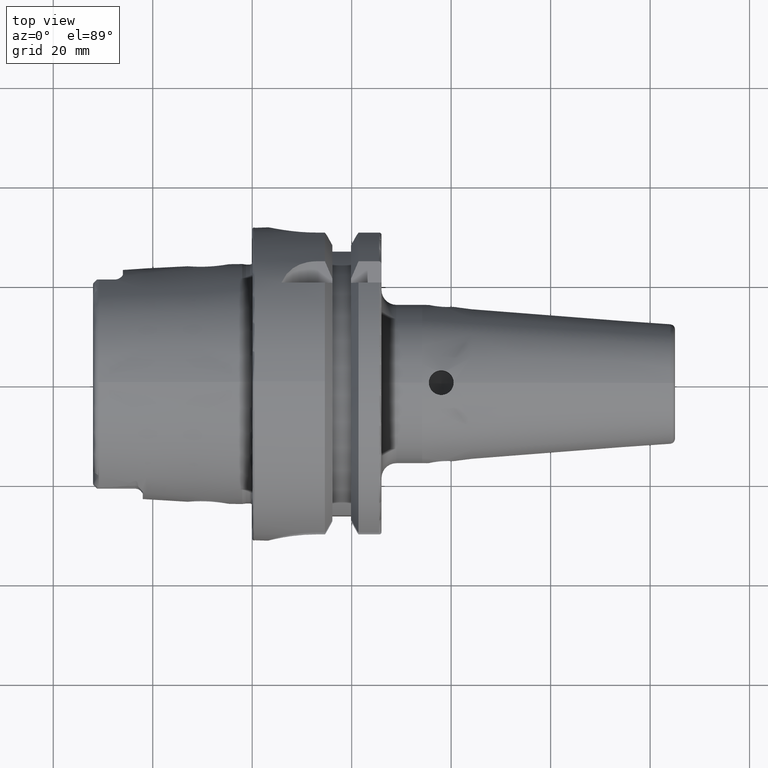
[diagram: clean part render]
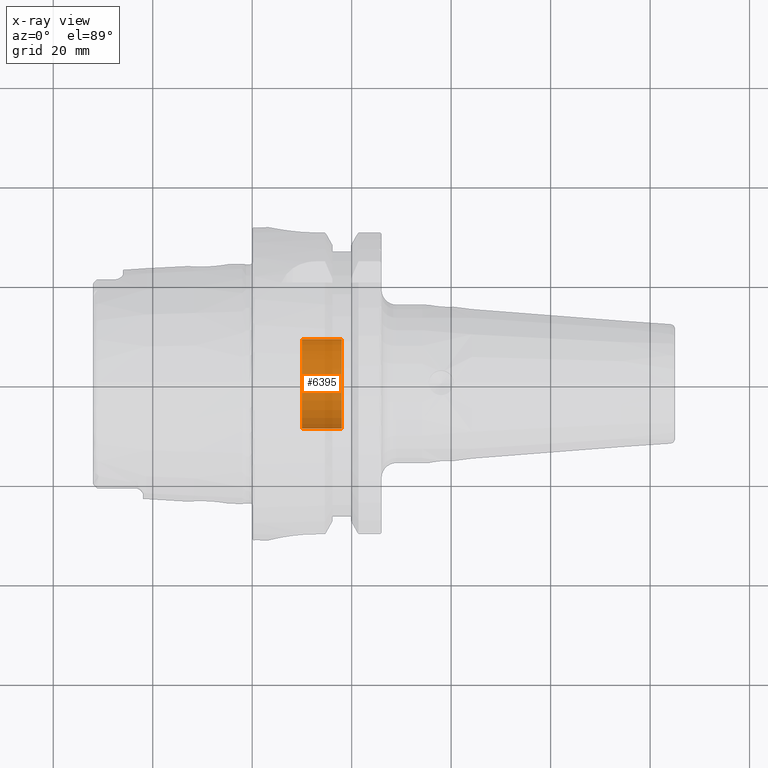
[diagram: x-ray — body ghosted, one internal face saturated and labeled with its STEP entity id]
A machine part, top view, then the same camera in x-ray: the body is ghosted and one INTERNAL B-rep face — a face not visible from any outside direction — is saturated and labeled: STEP entity #6395.
In plain terms, the highlighted cylindrical surface (partial cylindrical patch) has radius 9 mm, axis along (-1, 0, 0).
Its self-contained STEP definition (entity closure, byte-faithful):
#6330=CARTESIAN_POINT('',(1.E1,0.E0,0.E0));
#6331=DIRECTION('',(1.E0,0.E0,0.E0));
#6332=DIRECTION('',(0.E0,-1.E0,0.E0));
#6333=AXIS2_PLACEMENT_3D('',#6330,#6331,#6332);
#6340=DIRECTION('',(1.E0,0.E0,0.E0));
#6341=VECTOR('',#6340,8.E0);
#6342=CARTESIAN_POINT('',(1.E1,-9.E0,0.E0));
#6343=LINE('',#6342,#6341);
#6344=DIRECTION('',(1.E0,0.E0,0.E0));
#6345=VECTOR('',#6344,8.E0);
#6346=CARTESIAN_POINT('',(1.E1,9.E0,0.E0));
#6347=LINE('',#6346,#6345);
#6353=CARTESIAN_POINT('',(1.8E1,0.E0,0.E0));
#6354=DIRECTION('',(-1.E0,0.E0,0.E0));
#6355=DIRECTION('',(0.E0,1.E0,0.E0));
#6356=AXIS2_PLACEMENT_3D('',#6353,#6354,#6355);
#6368=CARTESIAN_POINT('',(1.8E1,9.E0,0.E0));
#6369=CARTESIAN_POINT('',(1.8E1,-9.E0,0.E0));
#6370=VERTEX_POINT('',#6368);
#6371=VERTEX_POINT('',#6369);
#6372=CARTESIAN_POINT('',(1.E1,9.E0,0.E0));
#6373=CARTESIAN_POINT('',(1.E1,-9.E0,0.E0));
#6374=VERTEX_POINT('',#6372);
#6375=VERTEX_POINT('',#6373);
#6380=CARTESIAN_POINT('',(2.376268102482E1,0.E0,0.E0));
#6381=DIRECTION('',(-1.E0,0.E0,0.E0));
#6382=DIRECTION('',(0.E0,1.E0,0.E0));
#6383=AXIS2_PLACEMENT_3D('',#6380,#6381,#6382);
#6384=CYLINDRICAL_SURFACE('',#6383,9.E0);
#6386=ORIENTED_EDGE('',*,*,#6385,.T.);
#6388=ORIENTED_EDGE('',*,*,#6387,.T.);
#6390=ORIENTED_EDGE('',*,*,#6389,.T.);
#6392=ORIENTED_EDGE('',*,*,#6391,.F.);
#6393=EDGE_LOOP('',(#6386,#6388,#6390,#6392));
#6394=FACE_OUTER_BOUND('',#6393,.F.);
#6395=ADVANCED_FACE('',(#6394),#6384,.F.);
#6334=CIRCLE('',#6333,9.E0);
#6357=CIRCLE('',#6356,9.E0);
#6385=EDGE_CURVE('',#6375,#6374,#6334,.T.);
#6387=EDGE_CURVE('',#6374,#6370,#6347,.T.);
#6389=EDGE_CURVE('',#6370,#6371,#6357,.T.);
#6391=EDGE_CURVE('',#6375,#6371,#6343,.T.);